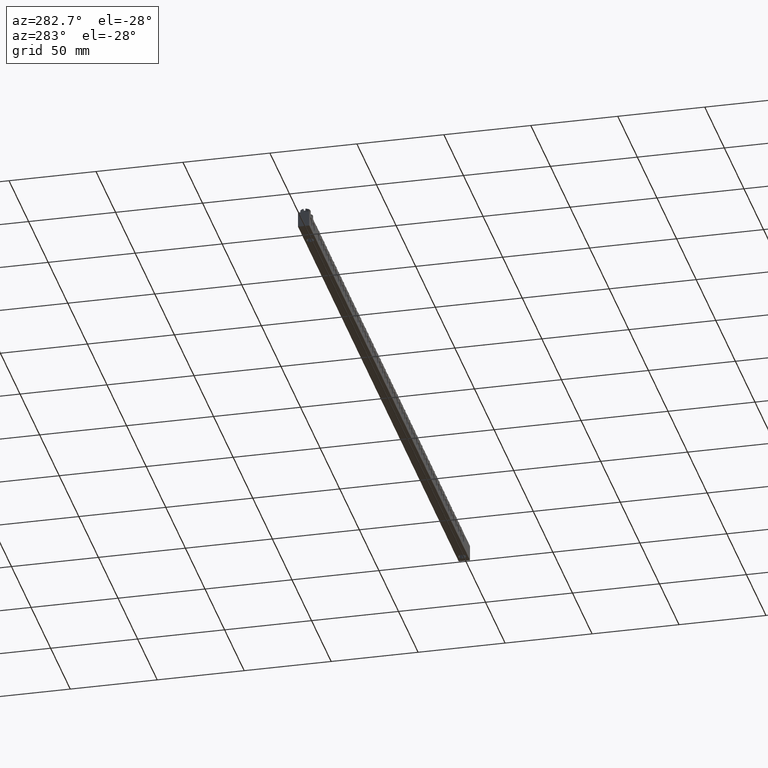
[diagram: clean part render]
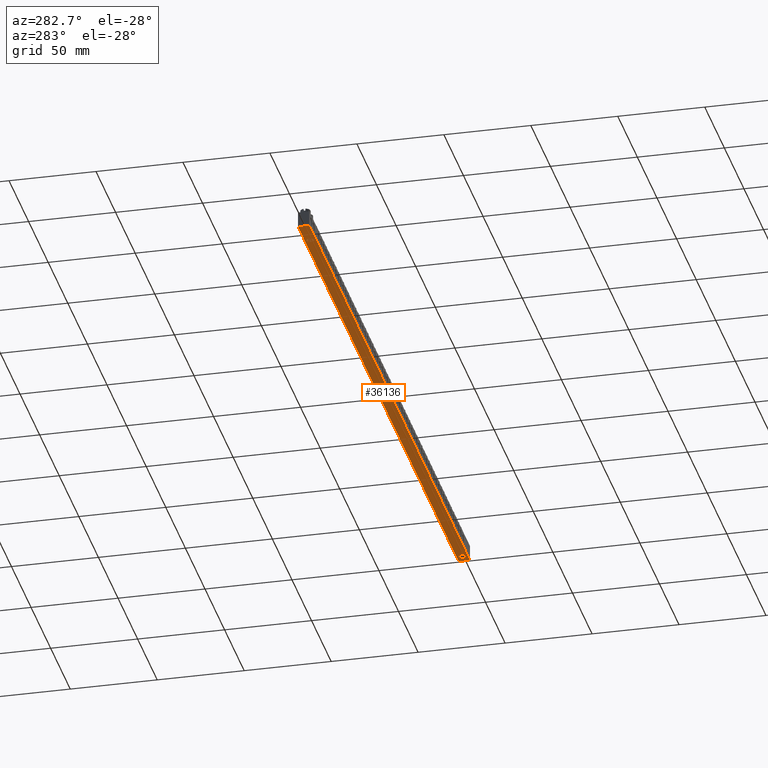
[diagram: same view with one face highlighted and labeled with its STEP entity id]
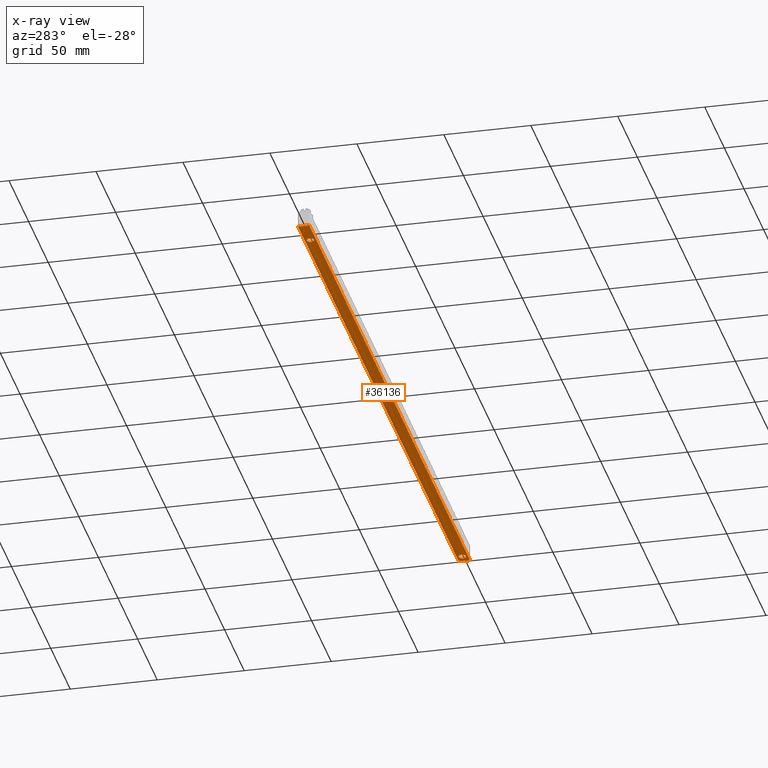
[diagram: x-ray of the same camera — body ghosted, the highlighted face saturated]
A machine part, auxiliary view. The second image highlights one B-rep face of the part: STEP entity #36136.
The next image is the same camera in x-ray: the body ghosted, the highlighted face saturated — about 0% of this face is hidden behind the body in this view.
In plain terms, the highlighted planar face has unit normal (0, 0, -1).
Its self-contained STEP definition (entity closure, byte-faithful):
#4919 = EDGE_LOOP ( 'NONE', ( #37227, #37257 ) ) ;
#4944 = EDGE_LOOP ( 'NONE', ( #37224, #37302, #37334, #37311 ) ) ;
#4950 = EDGE_LOOP ( 'NONE', ( #37280, #37243 ) ) ;
#5279 = VERTEX_POINT ( 'NONE', #25365 ) ;
#5313 = VERTEX_POINT ( 'NONE', #25432 ) ;
#5325 = VERTEX_POINT ( 'NONE', #25344 ) ;
#5327 = VERTEX_POINT ( 'NONE', #25351 ) ;
#7338 = PLANE ( 'NONE',  #34492 ) ;
#7339 = DIRECTION ( 'NONE',  ( 0.0000000000000000000, 0.0000000000000000000, -1.000000000000000000 ) ) ;
#7353 = FACE_BOUND ( 'NONE', #4919, .T. ) ;
#7355 = CARTESIAN_POINT ( 'NONE',  ( 0.0000000000000000000, 6.499999999999999100, 0.0000000000000000000 ) ) ;
#7356 = FACE_BOUND ( 'NONE', #4950, .T. ) ;
#7365 = DIRECTION ( 'NONE',  ( -1.000000000000000000, 0.0000000000000000000, -0.0000000000000000000 ) ) ;
#7366 = FACE_OUTER_BOUND ( 'NONE', #4944, .T. ) ;
#13761 = DIRECTION ( 'NONE',  ( 1.000000000000000000, 0.0000000000000000000, 0.0000000000000000000 ) ) ;
#13765 = CARTESIAN_POINT ( 'NONE',  ( 405.2500000000000000, 3.250000000000000900, 0.0000000000000000000 ) ) ;
#13770 = DIRECTION ( 'NONE',  ( 0.0000000000000000000, 0.0000000000000000000, 1.000000000000000000 ) ) ;
#13771 = DIRECTION ( 'NONE',  ( 0.0000000000000000000, 0.0000000000000000000, 1.000000000000000000 ) ) ;
#13772 = CARTESIAN_POINT ( 'NONE',  ( 17.74999999999997900, 3.249999999999999100, 0.0000000000000000000 ) ) ;
#13773 = DIRECTION ( 'NONE',  ( 1.000000000000000000, 0.0000000000000000000, 0.0000000000000000000 ) ) ;
#15932 = EDGE_CURVE ( 'NONE', #5279, #5325, #27140, .T. ) ;
#15959 = EDGE_CURVE ( 'NONE', #20684, #20680, #16820, .T. ) ;
#15961 = EDGE_CURVE ( 'NONE', #5325, #5313, #27125, .T. ) ;
#15994 = EDGE_CURVE ( 'NONE', #5327, #5279, #27280, .T. ) ;
#16002 = EDGE_CURVE ( 'NONE', #5313, #5327, #26364, .T. ) ;
#16014 = EDGE_CURVE ( 'NONE', #20683, #20693, #16874, .T. ) ;
#16712 = VECTOR ( 'NONE', #27141, 1000.000000000000000 ) ;
#16780 = VECTOR ( 'NONE', #27198, 1000.000000000000000 ) ;
#16820 = CIRCLE ( 'NONE', #16826, 2.100000000000001000 ) ;
#16826 = AXIS2_PLACEMENT_3D ( 'NONE', #27205, #27203, #27204 ) ;
#16842 = VECTOR ( 'NONE', #27310, 1000.000000000000000 ) ;
#16867 = VECTOR ( 'NONE', #26343, 1000.000000000000000 ) ;
#16869 = AXIS2_PLACEMENT_3D ( 'NONE', #26390, #26383, #26393 ) ;
#16874 = CIRCLE ( 'NONE', #16869, 2.149999999999985300 ) ;
#20680 = VERTEX_POINT ( 'NONE', #28342 ) ;
#20683 = VERTEX_POINT ( 'NONE', #28320 ) ;
#20684 = VERTEX_POINT ( 'NONE', #28322 ) ;
#20693 = VERTEX_POINT ( 'NONE', #28343 ) ;
#25344 = CARTESIAN_POINT ( 'NONE',  ( 410.4500000000000500, 6.499999999999999100, 0.0000000000000000000 ) ) ;
#25351 = CARTESIAN_POINT ( 'NONE',  ( 0.4500000000000000100, 0.0000000000000000000, 0.0000000000000000000 ) ) ;
#25365 = CARTESIAN_POINT ( 'NONE',  ( 0.4500000000000000100, 6.499999999999999100, 0.0000000000000000000 ) ) ;
#25432 = CARTESIAN_POINT ( 'NONE',  ( 410.4500000000000500, 0.0000000000000000000, 0.0000000000000000000 ) ) ;
#26343 = DIRECTION ( 'NONE',  ( -1.000000000000000000, 0.0000000000000000000, -0.0000000000000000000 ) ) ;
#26364 = LINE ( 'NONE', #26365, #16867 ) ;
#26365 = CARTESIAN_POINT ( 'NONE',  ( 0.0000000000000000000, 0.0000000000000000000, 0.0000000000000000000 ) ) ;
#26383 = DIRECTION ( 'NONE',  ( 0.0000000000000000000, 0.0000000000000000000, 1.000000000000000000 ) ) ;
#26390 = CARTESIAN_POINT ( 'NONE',  ( 405.2500000000000000, 3.250000000000000900, 0.0000000000000000000 ) ) ;
#26393 = DIRECTION ( 'NONE',  ( 1.000000000000000000, 0.0000000000000000000, 0.0000000000000000000 ) ) ;
#27125 = LINE ( 'NONE', #27133, #16780 ) ;
#27133 = CARTESIAN_POINT ( 'NONE',  ( 410.4500000000000500, 0.0000000000000000000, 0.0000000000000000000 ) ) ;
#27135 = CARTESIAN_POINT ( 'NONE',  ( 0.0000000000000000000, 6.499999999999999100, 0.0000000000000000000 ) ) ;
#27140 = LINE ( 'NONE', #27135, #16712 ) ;
#27141 = DIRECTION ( 'NONE',  ( 1.000000000000000000, -0.0000000000000000000, 0.0000000000000000000 ) ) ;
#27198 = DIRECTION ( 'NONE',  ( 0.0000000000000000000, -1.000000000000000000, 0.0000000000000000000 ) ) ;
#27203 = DIRECTION ( 'NONE',  ( 0.0000000000000000000, 0.0000000000000000000, 1.000000000000000000 ) ) ;
#27204 = DIRECTION ( 'NONE',  ( 1.000000000000000000, 0.0000000000000000000, 0.0000000000000000000 ) ) ;
#27205 = CARTESIAN_POINT ( 'NONE',  ( 17.74999999999997900, 3.249999999999999100, 0.0000000000000000000 ) ) ;
#27280 = LINE ( 'NONE', #27285, #16842 ) ;
#27285 = CARTESIAN_POINT ( 'NONE',  ( 0.4500000000000000100, 0.0000000000000000000, 0.0000000000000000000 ) ) ;
#27310 = DIRECTION ( 'NONE',  ( 0.0000000000000000000, 1.000000000000000000, 0.0000000000000000000 ) ) ;
#28320 = CARTESIAN_POINT ( 'NONE',  ( 407.3999999999999800, 3.250000000000000900, 0.0000000000000000000 ) ) ;
#28322 = CARTESIAN_POINT ( 'NONE',  ( 19.84999999999998000, 3.249999999999999100, 0.0000000000000000000 ) ) ;
#28342 = CARTESIAN_POINT ( 'NONE',  ( 15.64999999999997700, 3.249999999999999600, 0.0000000000000000000 ) ) ;
#28343 = CARTESIAN_POINT ( 'NONE',  ( 403.1000000000000200, 3.250000000000001300, 0.0000000000000000000 ) ) ;
#32596 = AXIS2_PLACEMENT_3D ( 'NONE', #13765, #13771, #13761 ) ;
#32601 = CIRCLE ( 'NONE', #32615, 2.100000000000001000 ) ;
#32613 = CIRCLE ( 'NONE', #32596, 2.149999999999985300 ) ;
#32615 = AXIS2_PLACEMENT_3D ( 'NONE', #13772, #13770, #13773 ) ;
#34492 = AXIS2_PLACEMENT_3D ( 'NONE', #7355, #7339, #7365 ) ;
#35468 = EDGE_CURVE ( 'NONE', #20680, #20684, #32601, .T. ) ;
#35469 = EDGE_CURVE ( 'NONE', #20693, #20683, #32613, .T. ) ;
#36136 = ADVANCED_FACE ( 'NONE', ( #7356, #7353, #7366 ), #7338, .T. ) ;
#37224 = ORIENTED_EDGE ( 'NONE', *, *, #15994, .T. ) ;
#37227 = ORIENTED_EDGE ( 'NONE', *, *, #15959, .T. ) ;
#37243 = ORIENTED_EDGE ( 'NONE', *, *, #35469, .T. ) ;
#37257 = ORIENTED_EDGE ( 'NONE', *, *, #35468, .T. ) ;
#37280 = ORIENTED_EDGE ( 'NONE', *, *, #16014, .T. ) ;
#37302 = ORIENTED_EDGE ( 'NONE', *, *, #15932, .T. ) ;
#37311 = ORIENTED_EDGE ( 'NONE', *, *, #16002, .T. ) ;
#37334 = ORIENTED_EDGE ( 'NONE', *, *, #15961, .T. ) ;